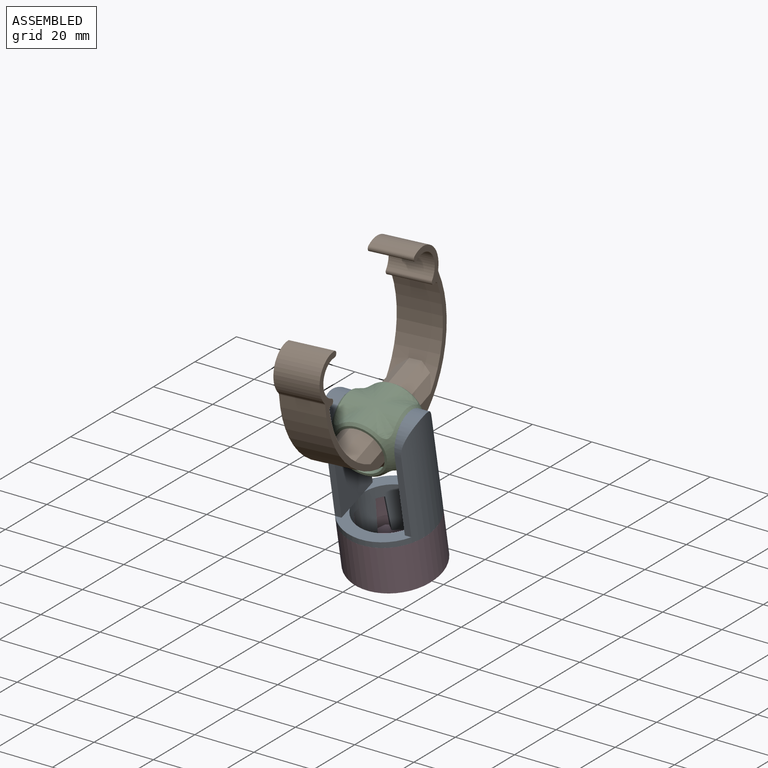
[diagram: assembled view]
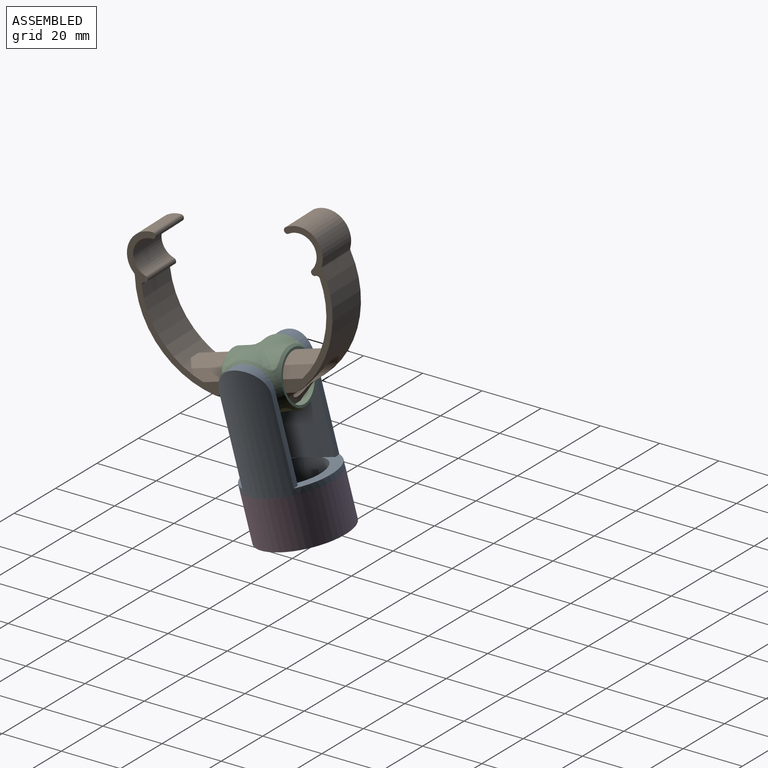
[diagram: assembled view, second angle]
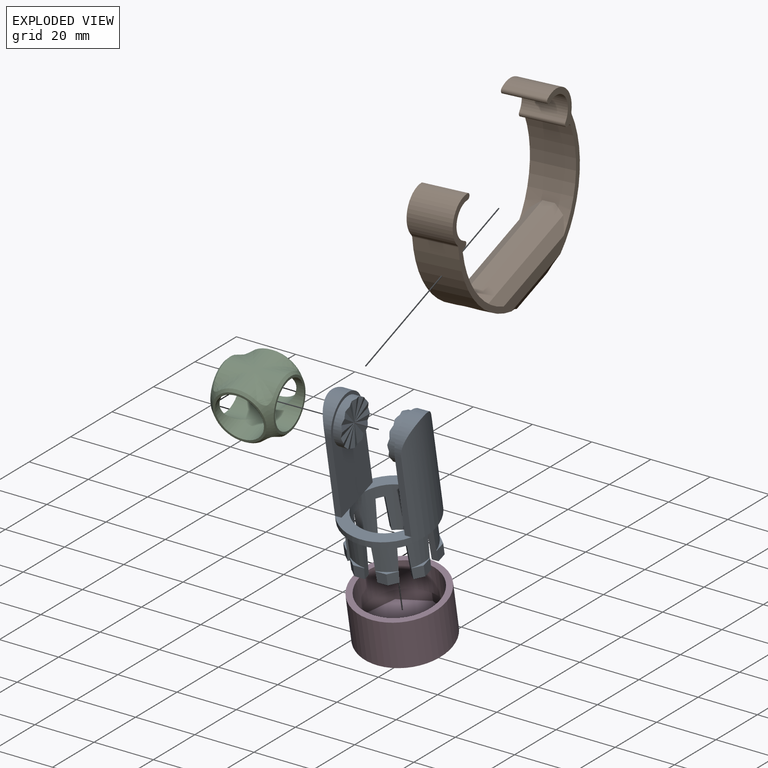
[diagram: exploded view]
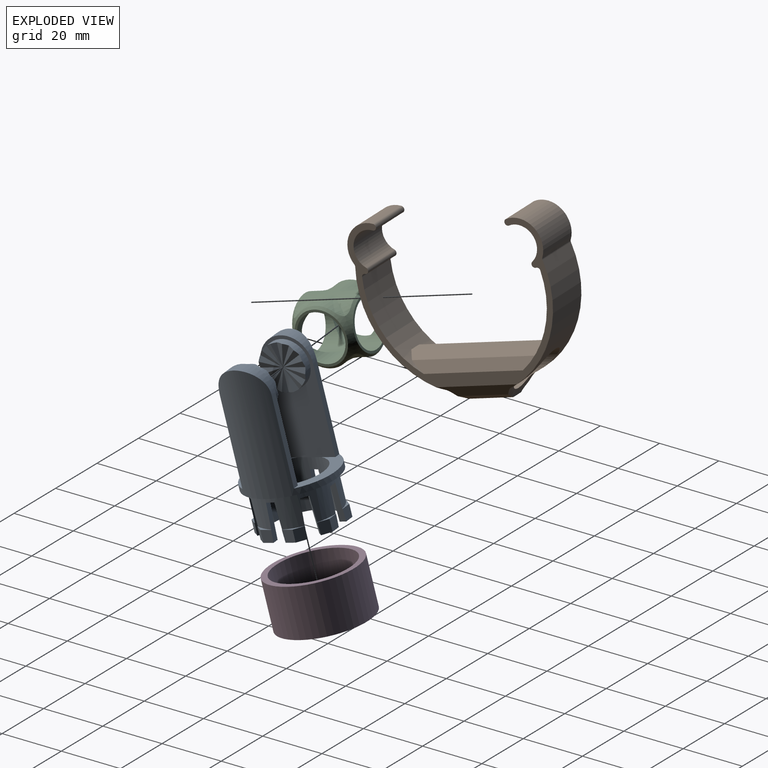
[diagram: exploded view, second angle]
ASSEMBLY  parts=4 mates=3
PART A: 122 faces, bbox 30x52.6x30 mm
  f0: plane 24.58x10.95mm, normal (0,1,0), area 100.8mm2, adj f2,f27,f64,f65,f69,f96
  f1: plane 24.58x10.95mm, normal (0,1,0), area 100.8mm2, adj f2,f27,f63,f67,f69,f96
  f2: cylinder r=10.97mm len=21.95mm, axis (0,1,0), area 774.8mm2, adj f0,f1,f19,f20,f21,f22,f23,f24
  f3: cylinder r=12.97mm len=25.95mm, axis (0,1,0), area 613.6mm2, adj f4,f5,f6,f7,f8,f9,f10,f28
  f4: plane 6.11x2.62mm, normal (0,1,0), area 3.5mm2, adj f3,f15,f35,f45,f47
  f5: plane 6.11x2.62mm, normal (0,1,0), area 3.5mm2, adj f3,f16,f36,f42,f44
  f6: plane 6.11x2.62mm, normal (0,1,0), area 3.5mm2, adj f3,f17,f18,f39,f41
  f7: plane 6.11x2.62mm, normal (0,1,0), area 3.5mm2, adj f3,f11,f37,f38,f60
  f8: plane 6.11x2.62mm, normal (0,1,0), area 3.5mm2, adj f3,f12,f30,f57,f61
  f9: plane 6.11x2.62mm, normal (0,1,0), area 3.5mm2, adj f3,f13,f31,f54,f56
  f10: plane 6.11x2.62mm, normal (0,1,0), area 3.5mm2, adj f3,f14,f34,f48,f50
  f11: plane 3.9x3.58mm, normal (0,0,1), area 13.6mm2, adj f7,f25,f37,f60
  f12: plane 3.9x2.53mm, normal (-0.71,0,0.71), area 13.6mm2, adj f8,f26,f30,f57
  f13: plane 3.9x3.58mm, normal (-1,0,0), area 13.6mm2, adj f9,f19,f31,f54
  f14: plane 3.9x2.53mm, normal (-0.71,0,-0.71), area 13.6mm2, adj f10,f20,f34,f50
  f15: plane 3.9x3.58mm, normal (0,0,-1), area 13.6mm2, adj f4,f21,f35,f47
  f16: plane 3.9x2.53mm, normal (0.71,0,-0.71), area 13.6mm2, adj f5,f22,f36,f44
  f17: plane 3.9x3.58mm, normal (1,0,0), area 13.6mm2, adj f6,f18,f23,f41
  f18: plane 3.9x2.53mm, normal (0.71,0,0.71), area 13.6mm2, adj f6,f17,f23,f39
  f19: plane 5.76x3.93mm, normal (0,-1,0), area 14.2mm2, adj f2,f13,f31,f54,f56
  f20: plane 5.76x3.93mm, normal (0,-1,0), area 14.2mm2, adj f2,f14,f34,f48,f50
  f21: plane 5.76x3.93mm, normal (0,-1,0), area 14.2mm2, adj f2,f15,f35,f45,f47
  f22: plane 5.76x3.93mm, normal (0,-1,0), area 14.2mm2, adj f2,f16,f36,f42,f44
  f23: plane 5.76x3.93mm, normal (0,-1,0), area 14.2mm2, adj f2,f17,f18,f39,f41
  f24: plane 5.76x3.93mm, normal (0,-1,0), area 14.2mm2, adj f2,f32,f33,f51,f53
  f25: plane 5.76x3.93mm, normal (0,-1,0), area 14.2mm2, adj f2,f11,f37,f38,f60
  f26: plane 5.76x3.93mm, normal (0,-1,0), area 14.2mm2, adj f2,f12,f30,f57,f61
  f27: cylinder r=15mm len=38.6mm, axis (0,1,0), area 1457.5mm2, adj f0,f1,f28,f62,f63,f64,f65,f66
  f28: plane 30x30mm, normal (0,-1,0), area 178mm2, adj f3,f27
  f29: plane 6.11x2.62mm, normal (0,1,0), area 3.5mm2, adj f3,f32,f33,f51,f53
  f30: plane 3.9x3.58mm, normal (0,0,1), area 13.6mm2, adj f8,f12,f26,f61
  f31: plane 3.9x2.53mm, normal (-0.71,0,0.71), area 13.6mm2, adj f9,f13,f19,f56
  f32: plane 3.9x3.58mm, normal (-1,0,0), area 13.6mm2, adj f24,f29,f33,f53
  f33: plane 3.9x2.53mm, normal (-0.71,0,-0.71), area 13.6mm2, adj f24,f29,f32,f51
  f34: plane 3.9x3.58mm, normal (0,0,-1), area 13.6mm2, adj f10,f14,f20,f48
  f35: plane 3.9x2.53mm, normal (0.71,0,-0.71), area 13.6mm2, adj f4,f15,f21,f45
  f36: plane 3.9x3.58mm, normal (1,0,0), area 13.6mm2, adj f5,f16,f22,f42
  f37: plane 3.9x2.53mm, normal (0.71,0,0.71), area 13.6mm2, adj f7,f11,f25,f38
  f38: plane 12.03x1.96mm, normal (0.71,-0.05,-0.71), area 24.8mm2, adj f2,f3,f7,f25,f37,f40
  f39: plane 12.03x1.96mm, normal (-0.71,-0.05,0.71), area 24.8mm2, adj f2,f3,f6,f18,f23,f40
  f40: plane 3.36x3.36mm, normal (0,-1,0), area 5.5mm2, adj f2,f3,f38,f39
  f41: plane 12.03x2.21mm, normal (0,-0.05,-1), area 24.8mm2, adj f2,f3,f6,f17,f23,f43
  f42: plane 12.03x2.21mm, normal (0,-0.05,1), area 24.8mm2, adj f2,f3,f5,f22,f36,f43
  f43: plane 2.74x2.09mm, normal (0,-1,0), area 5.5mm2, adj f2,f3,f41,f42
  f44: plane 12.03x1.96mm, normal (-0.71,-0.05,-0.71), area 24.8mm2, adj f2,f3,f5,f16,f22,f46
  f45: plane 12.03x1.96mm, normal (0.71,-0.05,0.71), area 24.8mm2, adj f2,f3,f4,f21,f35,f46
  f46: plane 3.36x3.36mm, normal (0,-1,0), area 5.5mm2, adj f2,f3,f44,f45
  f47: plane 12.03x2.21mm, normal (-1,-0.05,0), area 24.8mm2, adj f2,f3,f4,f15,f21,f49
  f48: plane 12.03x2.21mm, normal (1,-0.05,0), area 24.8mm2, adj f2,f3,f10,f20,f34,f49
  f49: plane 2.74x2.09mm, normal (0,-1,0), area 5.5mm2, adj f2,f3,f47,f48
  f50: plane 12.03x1.96mm, normal (-0.71,-0.05,0.71), area 24.8mm2, adj f2,f3,f10,f14,f20,f52
  f51: plane 12.03x1.96mm, normal (0.71,-0.05,-0.71), area 24.8mm2, adj f2,f3,f24,f29,f33,f52
  f52: plane 3.36x3.36mm, normal (0,-1,0), area 5.5mm2, adj f2,f3,f50,f51
  f53: plane 12.03x2.21mm, normal (0,-0.05,1), area 24.8mm2, adj f2,f3,f24,f29,f32,f55
  f54: plane 12.03x2.21mm, normal (0,-0.05,-1), area 24.8mm2, adj f2,f3,f9,f13,f19,f55
  f55: plane 2.74x2.09mm, normal (0,-1,0), area 5.5mm2, adj f2,f3,f53,f54
  f56: plane 12.03x1.96mm, normal (0.71,-0.05,0.71), area 24.8mm2, adj f2,f3,f9,f19,f31,f58
  f57: plane 12.03x1.96mm, normal (-0.71,-0.05,-0.71), area 24.8mm2, adj f2,f3,f8,f12,f26,f58
  f58: plane 3.36x3.36mm, normal (0,-1,0), area 5.5mm2, adj f2,f3,f56,f57
  f59: plane 2.74x2.09mm, normal (0,-1,0), area 5.5mm2, adj f2,f3,f60,f61
  f60: plane 12.03x2.21mm, normal (-1,-0.05,0), area 24.8mm2, adj f2,f3,f7,f11,f25,f59
  f61: plane 12.03x2.21mm, normal (1,-0.05,0), area 24.8mm2, adj f2,f3,f8,f26,f30,f59
  f62: cylinder r=8.6mm len=17.2mm, axis (0,0,-1), area 94mm2, adj f27,f63,f64,f69
  f63: plane 28x2.09mm, normal (-1,0,0), area 58.5mm2, adj f1,f27,f62,f69
  f64: plane 28x2.09mm, normal (1,0,0), area 58.5mm2, adj f0,f27,f62,f69
  f65: plane 28x2.09mm, normal (1,0,0), area 58.5mm2, adj f0,f27,f66,f96
  f66: cylinder r=8.6mm len=17.2mm, axis (0,0,1), area 94mm2, adj f27,f65,f67,f96
  f67: plane 28x2.09mm, normal (-1,0,0), area 58.5mm2, adj f1,f27,f66,f96
  f68: plane 8.1x0.78mm, normal (0,-1,0), area 4.2mm2, adj f2,f69
  f69: plane 36.6x17.2mm, normal (0,0,-1), area 421.1mm2, adj f0,f1,f62,f63,f64,f68,f94
  f70: plane 7.5x1.95mm, normal (-0.26,0,-0.97), area 7.6mm2, adj f71,f93,f94
  f71: plane 7.25x3.75mm, normal (0.22,-0.13,-0.97), area 7.6mm2, adj f70,f72,f94
  f72: plane 6.5x5.31mm, normal (-0.22,0.13,-0.97), area 7.6mm2, adj f71,f73,f94
  f73: plane 6.5x5.31mm, normal (0.13,-0.22,-0.97), area 7.6mm2, adj f72,f74,f94
  f74: plane 7.25x3.75mm, normal (-0.13,0.22,-0.97), area 7.6mm2, adj f73,f75,f94
  f75: plane 7.5x1.95mm, normal (0,-0.26,-0.97), area 7.6mm2, adj f74,f76,f94
  f76: plane 7.5x1.95mm, normal (0,0.26,-0.97), area 7.6mm2, adj f75,f77,f94
  f77: plane 7.25x3.75mm, normal (-0.13,-0.22,-0.97), area 7.6mm2, adj f76,f78,f94
  f78: plane 6.5x5.31mm, normal (0.13,0.22,-0.97), area 7.6mm2, adj f77,f79,f94
  f79: plane 6.5x5.31mm, normal (-0.22,-0.13,-0.97), area 7.6mm2, adj f78,f80,f94
  f80: plane 7.25x3.75mm, normal (0.22,0.13,-0.97), area 7.6mm2, adj f79,f81,f94
  f81: plane 7.5x1.95mm, normal (-0.26,0,-0.97), area 7.6mm2, adj f80,f82,f94
  f82: plane 7.5x1.95mm, normal (0.26,0,-0.97), area 7.6mm2, adj f81,f83,f94
  f83: plane 7.25x3.75mm, normal (-0.22,0.13,-0.97), area 7.6mm2, adj f82,f84,f94
  f84: plane 6.5x5.31mm, normal (0.22,-0.13,-0.97), area 7.6mm2, adj f83,f85,f94
  f85: plane 6.5x5.31mm, normal (-0.13,0.22,-0.97), area 7.6mm2, adj f84,f86,f94
  f86: plane 7.25x3.75mm, normal (0.13,-0.22,-0.97), area 7.6mm2, adj f85,f87,f94
  f87: plane 7.5x1.95mm, normal (0,0.26,-0.97), area 7.6mm2, adj f86,f88,f94
  f88: plane 7.5x1.95mm, normal (0,-0.26,-0.97), area 7.6mm2, adj f87,f89,f94
  f89: plane 7.25x3.75mm, normal (0.13,0.22,-0.97), area 7.6mm2, adj f88,f90,f94
  f90: plane 6.5x5.31mm, normal (-0.13,-0.22,-0.97), area 7.6mm2, adj f89,f91,f94
  f91: plane 6.5x5.31mm, normal (0.22,0.13,-0.97), area 7.6mm2, adj f90,f92,f94
  f92: plane 7.25x3.75mm, normal (-0.22,-0.13,-0.97), area 7.6mm2, adj f91,f93,f94
  f93: plane 7.5x1.95mm, normal (0.26,0,-0.97), area 7.6mm2, adj f70,f92,f94
  f94: cylinder r=7.5mm len=15mm, axis (0,0,1), area 127mm2, adj f69,f70,f71,f72,f73,f74,f75,f76
  f95: plane 8.1x0.78mm, normal (0,-1,0), area 4.2mm2, adj f2,f96
  f96: plane 36.6x17.2mm, normal (0,0,1), area 421.1mm2, adj f0,f1,f65,f66,f67,f95,f121
  f97: plane 6.5x5.31mm, normal (0.22,0.13,0.97), area 7.6mm2, adj f98,f120,f121
  f98: plane 6.5x5.31mm, normal (-0.13,-0.22,0.97), area 7.6mm2, adj f97,f99,f121
  f99: plane 7.25x3.75mm, normal (0.13,0.22,0.97), area 7.6mm2, adj f98,f100,f121
  f100: plane 7.5x1.95mm, normal (0,-0.26,0.97), area 7.6mm2, adj f99,f101,f121
  f101: plane 7.5x1.95mm, normal (0,0.26,0.97), area 7.6mm2, adj f100,f102,f121
  f102: plane 7.25x3.75mm, normal (0.13,-0.22,0.97), area 7.6mm2, adj f101,f103,f121
  f103: plane 6.5x5.31mm, normal (-0.13,0.22,0.97), area 7.6mm2, adj f102,f104,f121
  f104: plane 6.5x5.31mm, normal (0.22,-0.13,0.97), area 7.6mm2, adj f103,f105,f121
  f105: plane 7.25x3.75mm, normal (-0.22,0.13,0.97), area 7.6mm2, adj f104,f106,f121
  f106: plane 7.5x1.95mm, normal (0.26,0,0.97), area 7.6mm2, adj f105,f107,f121
  f107: plane 7.5x1.95mm, normal (-0.26,0,0.97), area 7.6mm2, adj f106,f108,f121
  f108: plane 7.25x3.75mm, normal (0.22,0.13,0.97), area 7.6mm2, adj f107,f109,f121
  f109: plane 6.5x5.31mm, normal (-0.22,-0.13,0.97), area 7.6mm2, adj f108,f110,f121
  f110: plane 6.5x5.31mm, normal (0.13,0.22,0.97), area 7.6mm2, adj f109,f111,f121
  f111: plane 7.25x3.75mm, normal (-0.13,-0.22,0.97), area 7.6mm2, adj f110,f112,f121
  f112: plane 7.5x1.95mm, normal (0,0.26,0.97), area 7.6mm2, adj f111,f113,f121
  f113: plane 7.5x1.95mm, normal (0,-0.26,0.97), area 7.6mm2, adj f112,f114,f121
  f114: plane 7.25x3.75mm, normal (-0.13,0.22,0.97), area 7.6mm2, adj f113,f115,f121
  f115: plane 6.5x5.31mm, normal (0.13,-0.22,0.97), area 7.6mm2, adj f114,f116,f121
  f116: plane 6.5x5.31mm, normal (-0.22,0.13,0.97), area 7.6mm2, adj f115,f117,f121
  f117: plane 7.25x3.75mm, normal (0.22,-0.13,0.97), area 7.6mm2, adj f116,f118,f121
  f118: plane 7.5x1.95mm, normal (-0.26,0,0.97), area 7.6mm2, adj f117,f119,f121
  f119: plane 7.5x1.95mm, normal (0.26,0,0.97), area 7.6mm2, adj f118,f120,f121
  f120: plane 7.25x3.75mm, normal (-0.22,-0.13,0.97), area 7.6mm2, adj f97,f119,f121
  f121: cylinder r=7.5mm len=15mm, axis (0,0,-1), area 127mm2, adj f96,f97,f98,f99,f100,f101,f102,f103
PART B: 33 faces, bbox 20000000000000000038313501714693374724319102545303840223056070291987586484079775119224722902163606470656x20000000000000000038313501714693374724319102545303840223056070291987586484079775119224722902163606470656x20000000000000000038313501714693374724319102545303840223056070291987586484079775119224722902163606470656 mm
  f0: cylinder r=32.13mm len=37.01mm, axis (0,0,-1), area 542.4mm2, adj f1,f26,f27,f28,f29,f30,f31
  f1: cylinder r=5.5mm len=47.6mm, axis (1,0,0), area 1165.8mm2, adj f0,f2,f3,f7,f26
  f2: cylinder r=5.5mm len=0mm, axis (1,0,0), area 0mm2, adj f1,f7
  f3: bspline ~15.08x4.37mm, area 36.8mm2, adj f1,f4,f5,f6,f7,f27,f31
  f4: plane 17.57x4.1mm, normal (0,-0.87,0.5), area 63.5mm2, adj f3,f5,f26,f27
  f5: plane 15x4.02mm, normal (0,-1,0), area 60.3mm2, adj f3,f4,f6,f26
  f6: plane 17.57x4.1mm, normal (0,-0.87,-0.5), area 63.5mm2, adj f3,f5,f26,f31
  f7: cylinder r=32.13mm len=37.01mm, axis (0,0,-1), area 542.5mm2, adj f1,f2,f3,f8,f27,f28,f30,f31
  f8: cylinder r=1.04mm len=15mm, axis (0,0,-1), area 11.4mm2, adj f7,f9,f28,f30
  f9: cylinder r=8mm len=15mm, axis (0,0,-1), area 286.1mm2, adj f8,f10,f28,f30
  f10: cylinder r=1mm len=15mm, axis (0,0,-1), area 47.1mm2, adj f9,f11,f28,f30
  f11: cylinder r=6mm len=15mm, axis (0,0,-1), area 256.9mm2, adj f10,f12,f28,f30
  f12: cylinder r=1mm len=15mm, axis (0,0,-1), area 42mm2, adj f11,f13,f28,f30
  f13: cylinder r=1mm len=15mm, axis (0,0,-1), area 25.3mm2, adj f12,f14,f28,f30
  f14: cylinder r=30.13mm len=28.91mm, axis (0,0,-1), area 409.6mm2, adj f13,f15,f22,f23,f24,f25,f28,f30
  f15: plane 42.04x3.6mm, normal (0,0.5,-0.87), area 152.2mm2, adj f14,f16,f25,f30
  f16: cylinder r=30.13mm len=28.91mm, axis (0,0,-1), area 409.6mm2, adj f15,f17,f22,f23,f24,f25,f28,f30
  f17: cylinder r=1mm len=15mm, axis (0,0,-1), area 25.3mm2, adj f16,f18,f28,f30
  f18: cylinder r=1mm len=15mm, axis (0,0,-1), area 42mm2, adj f17,f19,f28,f30
  f19: cylinder r=6mm len=15mm, axis (0,0,-1), area 256.9mm2, adj f18,f20,f28,f30
  f20: cylinder r=1mm len=15mm, axis (0,0,-1), area 47.1mm2, adj f19,f21,f28,f30
  f21: cylinder r=8mm len=15mm, axis (0,0,-1), area 286.1mm2, adj f20,f28,f29,f30
  f22: plane 42.04x3.6mm, normal (0,0.5,0.87), area 152.2mm2, adj f14,f16,f23,f28
  f23: plane 45.79x3.56mm, normal (0,0.87,0.5), area 176.4mm2, adj f14,f16,f22,f24
  f24: plane 45.71x4.02mm, normal (0,1,0), area 183.7mm2, adj f14,f16,f23,f25
  f25: plane 45.79x3.56mm, normal (0,0.87,-0.5), area 176.4mm2, adj f14,f15,f16,f24
  f26: bspline ~15.08x4.37mm, area 36.8mm2, adj f0,f1,f4,f5,f6,f27,f31
  f27: plane 28.15x4.56mm, normal (0,-0.5,0.87), area 83.2mm2, adj f0,f3,f4,f7,f26,f28
  f28: plane 65.17x48.6mm, normal (0,0,1), area 366.1mm2, adj f0,f7,f8,f9,f10,f11,f12,f13
  f29: cylinder r=1.04mm len=15mm, axis (0,0,-1), area 11.4mm2, adj f0,f21,f28,f30
  f30: plane 65.17x48.6mm, normal (0,0,-1), area 366.1mm2, adj f0,f7,f8,f9,f10,f11,f12,f13
  f31: plane 28.15x4.56mm, normal (0,-0.5,-0.87), area 83.2mm2, adj f0,f3,f6,f7,f26,f30
  f32: cylinder r=5.5mm len=20000000000000000038313501714693374724319102545303840223056070291987586484079775119224722902163606470656mm, axis (1,0,0), area 439999999999999873528148516817873852157164730410549419190458942302711237890976967974112668639055205892096mm2
PART C: 30 faces, bbox 22.9x22.9x20.5 mm
  f0: cylinder r=9.4mm len=12.27mm, axis (0,1,0), area 62.8mm2, adj f1,f27,f28,f29
  f1: bspline ~11.43x11.43mm, area 21.8mm2, adj f0,f2,f26,f29
  f2: cylinder r=9.4mm len=12.27mm, axis (-1,0,0), area 62.8mm2, adj f1,f3,f26
  f3: bspline ~11.43x11.43mm, area 31.1mm2, adj f2,f4,f25,f26
  f4: cylinder r=9.4mm len=12.27mm, axis (0,1,0), area 62.8mm2, adj f3,f5,f25
  f5: bspline ~11.43x11.43mm, area 23.5mm2, adj f4,f6,f7,f25
  f6: cylinder r=9.4mm len=12.27mm, axis (-1,0,0), area 62.8mm2, adj f5,f7,f27,f28
  f7: cone r=9.4mm half-angle=45deg, axis (1,0,0), area 84.1mm2, adj f5,f6,f8,f15,f16,f17,f25,f28
  f8: bspline ~11.43x11.43mm, area 31.1mm2, adj f7,f9,f16,f29
  f9: cylinder r=9.4mm len=12.27mm, axis (0,1,0), area 62.8mm2, adj f8,f10,f29
  f10: bspline ~11.43x11.43mm, area 23.5mm2, adj f9,f11,f26,f29
  f11: cylinder r=9.4mm len=12.27mm, axis (-1,0,0), area 62.8mm2, adj f10,f12,f14,f26
  f12: bspline ~4.63x4.63mm, area 0.9mm2, adj f11,f13
  f13: cylinder r=9.4mm len=12.27mm, axis (0,1,0), area 62.8mm2, adj f12,f14,f15,f25
  f14: bspline ~9.9x9.9mm, area 17mm2, adj f11,f13,f25,f26
  f15: bspline ~11.43x11.43mm, area 21.8mm2, adj f7,f13,f16,f25
  f16: cylinder r=9.4mm len=12.27mm, axis (-1,0,0), area 62.8mm2, adj f7,f8,f15
  f17: plane 17.2x17.2mm, normal (-1,0,0), area 41.2mm2, adj f7,f18
  f18: cylinder r=7.8mm len=15.6mm, axis (-1,0,0), area 256.5mm2, adj f17,f19,f23
  f19: cylinder r=7.8mm len=15.6mm, axis (0,1,0), area 256.5mm2, adj f18,f20,f22
  f20: cylinder r=7.8mm len=15.6mm, axis (-1,0,0), area 256.5mm2, adj f19,f21,f23
  f21: plane 17.2x17.2mm, normal (1,0,0), area 41.2mm2, adj f20,f26
  f22: plane 17.2x17.2mm, normal (0,1,0), area 41.2mm2, adj f19,f29
  f23: cylinder r=7.8mm len=15.6mm, axis (0,1,0), area 256.5mm2, adj f18,f20,f24
  f24: plane 17.2x17.2mm, normal (0,-1,0), area 41.2mm2, adj f23,f25
  f25: cone r=8.6mm half-angle=45deg, axis (0,1,0), area 84.1mm2, adj f3,f4,f5,f7,f13,f14,f15,f24
  f26: cone r=8.6mm half-angle=45deg, axis (-1,0,0), area 84.1mm2, adj f1,f2,f3,f10,f11,f14,f21,f25
  f27: bspline ~1.88x1.88mm, area 0mm2, adj f0,f6
  f28: bspline ~11.43x11.43mm, area 20.9mm2, adj f0,f6,f7,f29
  f29: cone r=9.4mm half-angle=45deg, axis (0,-1,0), area 84.1mm2, adj f0,f1,f7,f8,f9,f10,f22,f26
PART D: 21 faces, bbox 30x30x16 mm
  f0: cylinder r=15mm len=30mm, axis (0,0,1), area 1508mm2, adj f1,f10
  f1: plane 30x30mm, normal (0,0,-1), area 706.9mm2, adj f0
  f2: plane 9.19x3.81mm, normal (0,0,-1), area 3.6mm2, adj f9,f13,f20
  f3: plane 9.19x3.81mm, normal (0,0,-1), area 3.6mm2, adj f9,f19,f20
  f4: plane 9.19x3.81mm, normal (0,0,-1), area 3.6mm2, adj f9,f18,f19
  f5: plane 9.19x3.81mm, normal (0,0,-1), area 3.6mm2, adj f9,f17,f18
  f6: plane 9.19x3.81mm, normal (0,0,-1), area 3.6mm2, adj f9,f16,f17
  f7: plane 9.19x3.81mm, normal (0,0,-1), area 3.6mm2, adj f9,f15,f16
  f8: plane 9.19x3.81mm, normal (0,0,-1), area 3.6mm2, adj f9,f14,f15
  f9: cylinder r=13mm len=26mm, axis (0,0,-1), area 816.8mm2, adj f2,f3,f4,f5,f6,f7,f8,f10
  f10: plane 30x30mm, normal (0,0,1), area 175.9mm2, adj f0,f9
  f11: plane 9.19x3.81mm, normal (0,0,-1), area 3.6mm2, adj f9,f13,f14
  f12: plane 26x26mm, normal (0,0,1), area 560mm2, adj f13,f14,f15,f16,f17,f18,f19,f20
  f13: plane 10.77x4mm, normal (-1,0,0), area 43.1mm2, adj f2,f11,f12,f14,f20
  f14: plane 7.62x7.62mm, normal (-0.71,-0.71,0), area 43.1mm2, adj f8,f11,f12,f13,f15
  f15: plane 10.77x4mm, normal (0,-1,0), area 43.1mm2, adj f7,f8,f12,f14,f16
  f16: plane 7.62x7.62mm, normal (0.71,-0.71,0), area 43.1mm2, adj f6,f7,f12,f15,f17
  f17: plane 10.77x4mm, normal (1,0,0), area 43.1mm2, adj f5,f6,f12,f16,f18
  f18: plane 7.62x7.62mm, normal (0.71,0.71,0), area 43.1mm2, adj f4,f5,f12,f17,f19
  f19: plane 10.77x4mm, normal (0,1,0), area 43.1mm2, adj f3,f4,f12,f18,f20
  f20: plane 7.62x7.62mm, normal (-0.71,0.71,0), area 43.1mm2, adj f2,f3,f12,f13,f19
PLACE A rot(axis=(0.6,0.51,0.62),131.7deg) t=(0.06,0,0)mm
PLACE B rot(axis=(0.65,-0.46,-0.6),128deg) t=(-0.25,-7.19,26.16)mm
PLACE C rot(axis=(0.12,0.16,-0.98),87.1deg) t=(0.06,0,0)mm
PLACE D rot(axis=(0.2,-0.09,0.98),68.8deg) t=(-1.86,10.51,-42.68)mm fixed
MATE revolute C.f18 <-> B.f1  axis (-0.06,0.96,0.27) through (0.06,0.06,0.02)mm
MATE revolute A.f2 <-> D.f0  axis (0.04,-0.24,0.97) through (-1.16,6.69,-27.16)mm
MATE revolute C.f0 <-> A.f94  axis (-1,-0.07,0.03) through (-10.11,-0.76,0.27)mm
